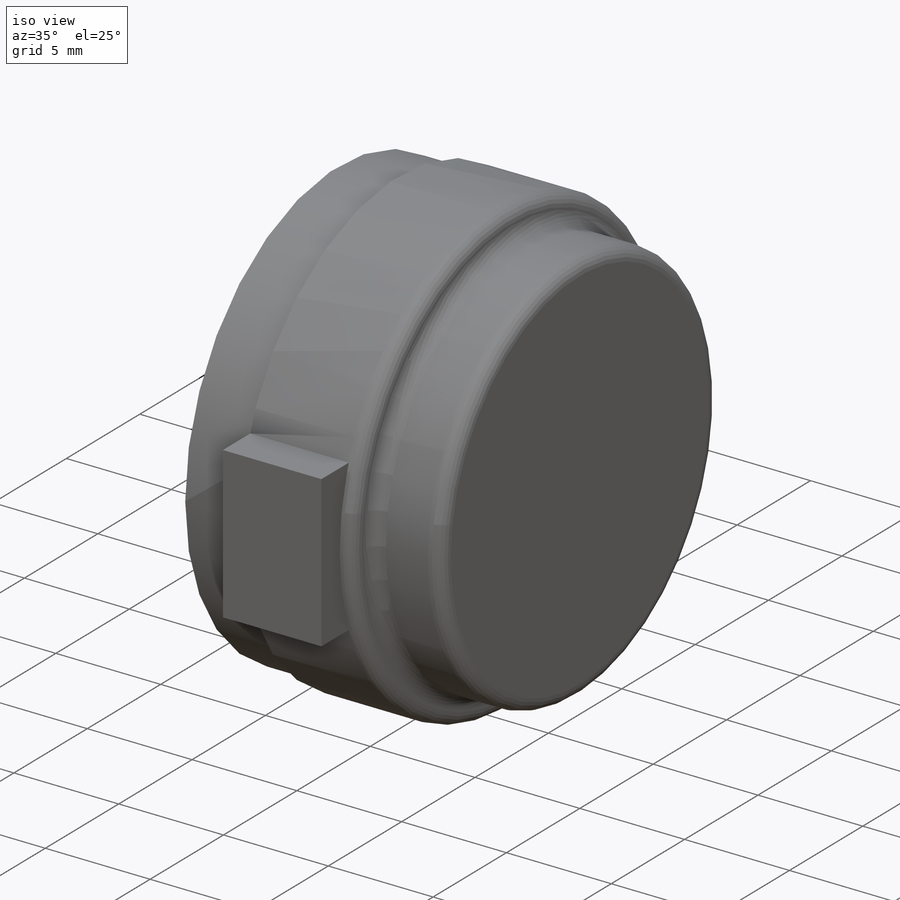
[diagram: iso view]
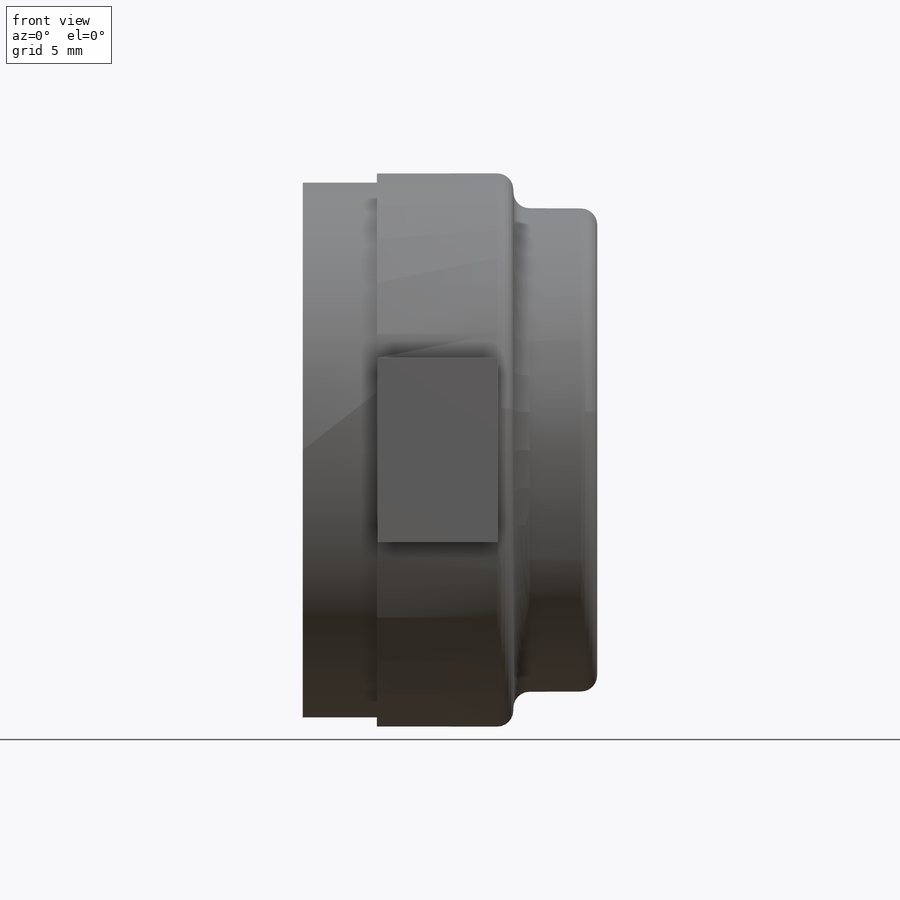
[diagram: front view]
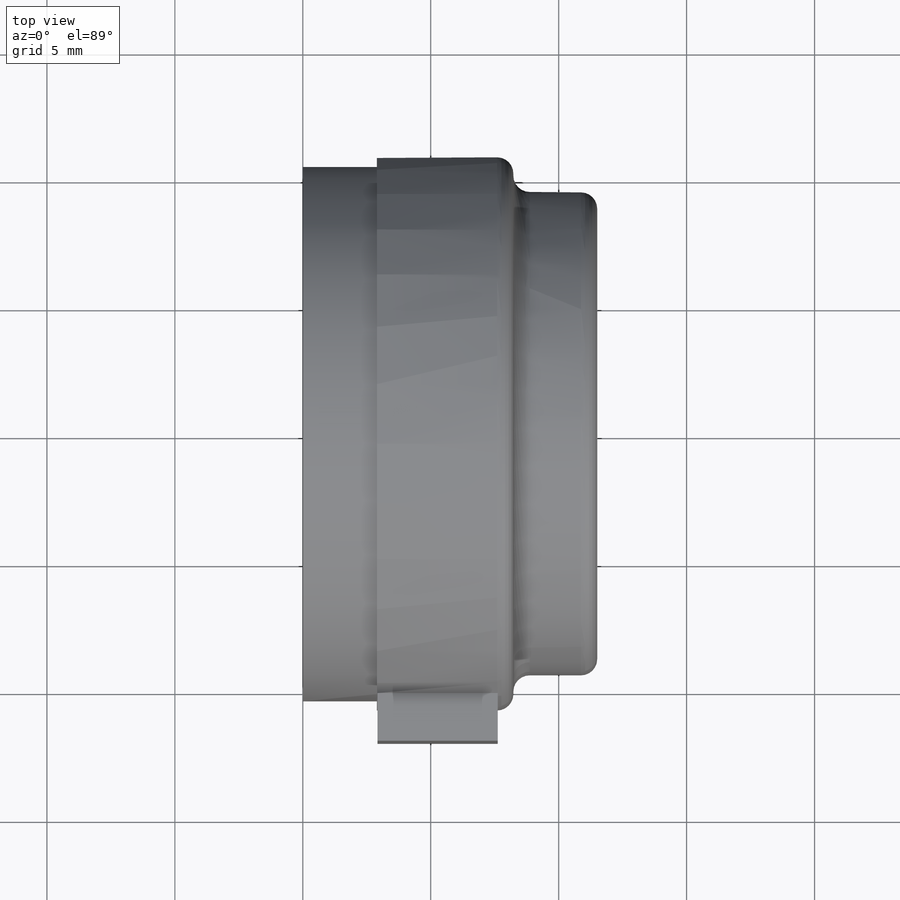
[diagram: top view]
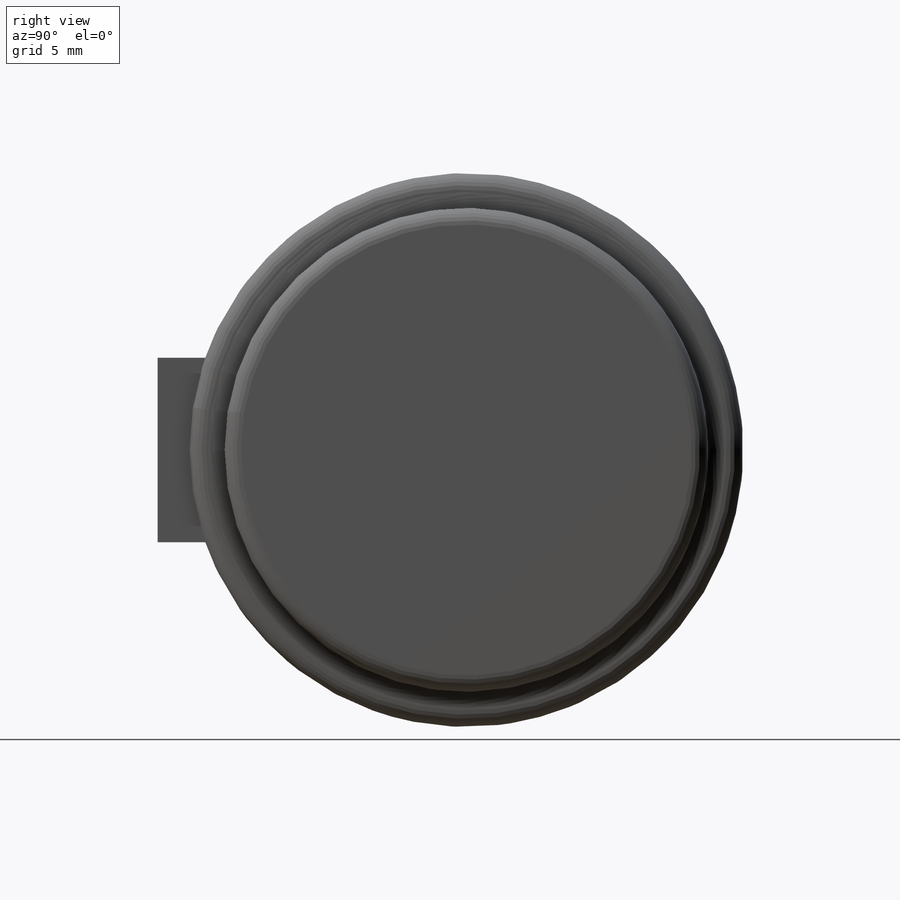
[diagram: right view]
SOLIDWORKS PART (.sldprt)
format: sldprt  version: not decoded by parser v0  size: 330,240 bytes
history: native  units: mm
features: sketch x5, thread x2, material x1, revolve x1, extrude x1, fillet x1, hole x1 (+13 scaffold rows collapsed)
feature tree (25):
  scaffold x13  (default folders/planes/origin — collapsed)
  material  "Material <not specified>"
  sketch  "Sketch1"  dims[c1.D1=5.08mm c1.D2=10.4648mm c1.D3=10.8204mm c1.D4=9.4488mm c1.D5=2.8956mm c1.D6=5.3848mm c2.D6=90.0deg c3.D6=5.3848mm c4.D6=90.0deg c5.D6=8.2296mm c5.D7=11.5062mm]
  revolve  "Revolve1"  Angle=360deg
  sketch  "Sketch2"  dims[D1=2.921mm D2=7.62mm D3=7.2136mm]
  extrude  "Extrude1"  Depth=2.54mm
  fillet  "Fillet1"  Radius=0.635mm
  sketch  "Sketch3"  dims[c1.D1=14.8844mm c1.D2=~7.764337mm c1.D3=~6.965731mm c2.D2=~7.08604mm c3.D2=60.0deg c3.D3=3.7211mm c4.D3=180.0deg c4.D2=120.0deg]
  hole  "#3-56 Tapped Hole1"  Diameter=2.0828mm Depth=7.366mm
  sketch  "3DSketch2"
  sketch  "Sketch4"  dims[hole-wizard template sketch: 46 standard entries collapsed; hole parameters kept: c15.Tap Drill Dia.=2.0828mm c15.Tap Drill Depth=7.366mm c15.D3=~14.816244mm c15.Drill Angle=118.0deg]
  thread  "Hole Thread1"  Diameter=5.08mm  [1 undecoded]
  thread  "Hole Thread2"  Diameter=5.08mm  [1 undecoded]
decode coverage: 10 of 11 modeling features carry decoded parameters
note: ~ marks probable driven/reference dimensions
note: 2 parameter values undecoded
note: suppression state not decoded; provenance and decode notes live in map.json
